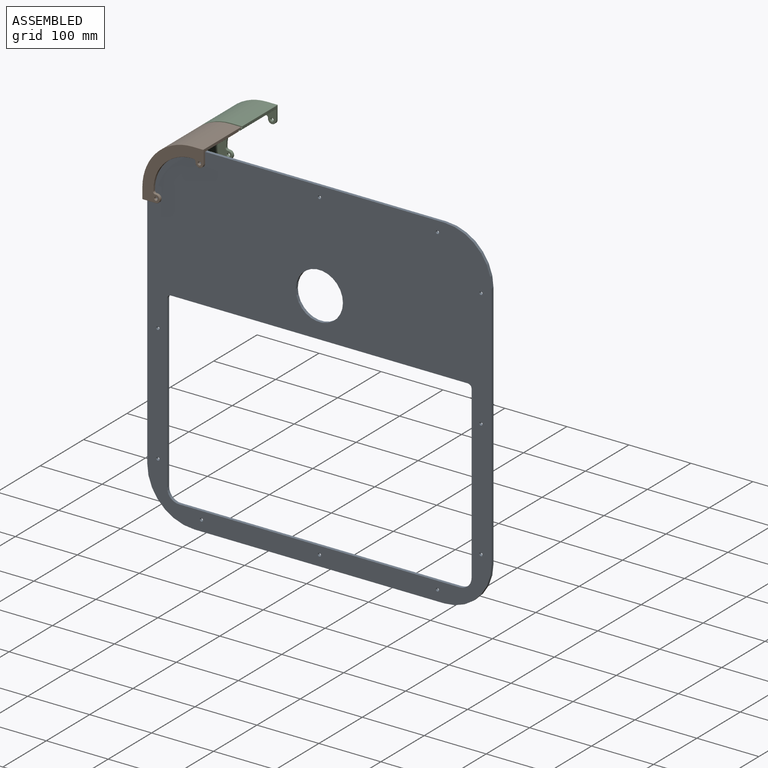
[diagram: assembled view]
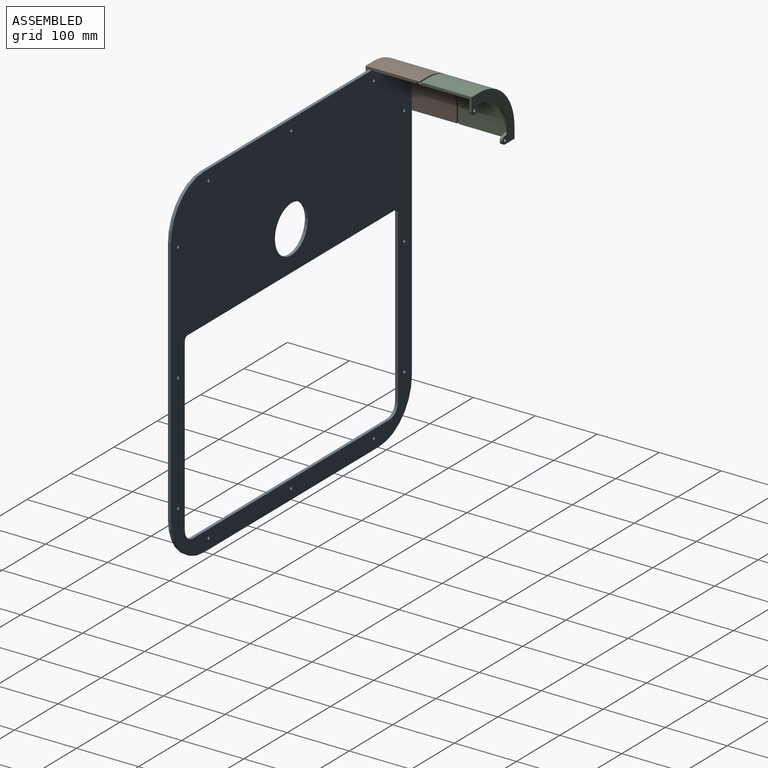
[diagram: assembled view, second angle]
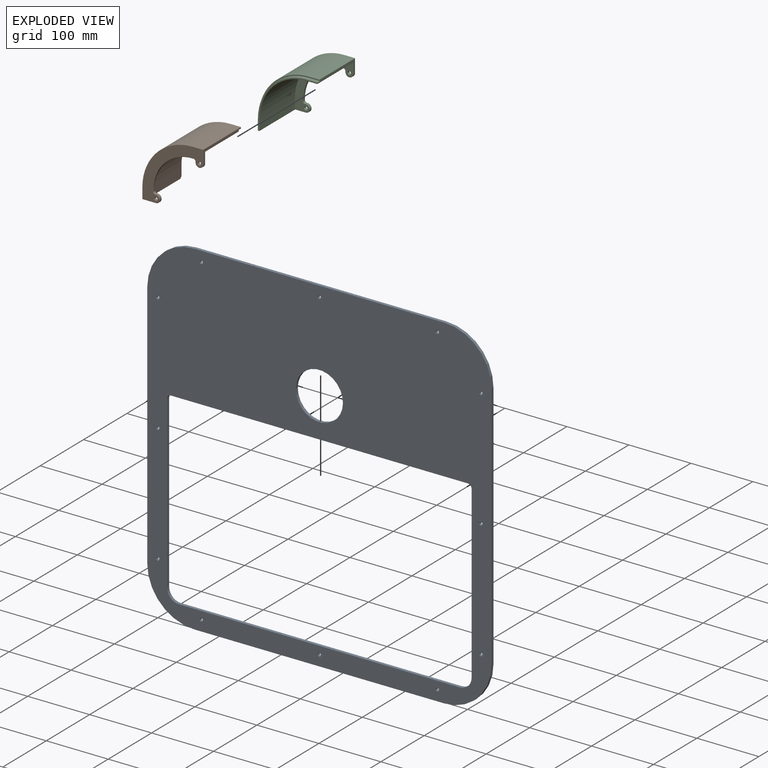
[diagram: exploded view]
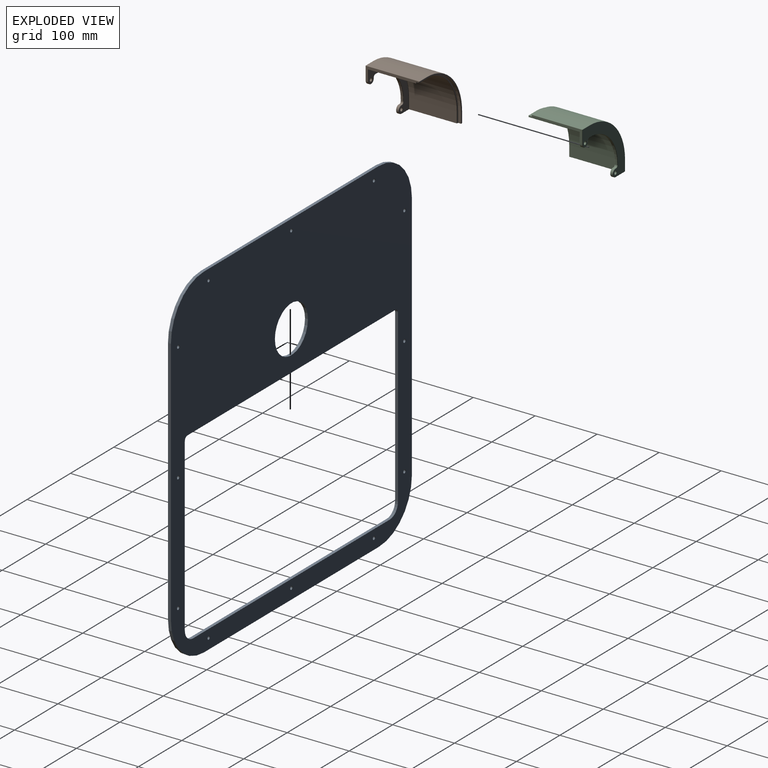
[diagram: exploded view, second angle]
ASSEMBLY  parts=3 mates=2
PART A: 43 faces, bbox 555.5x4.8x555.5 mm
  f0: plane 403.1x4.75mm, normal (0,0,1), area 1914.6mm2, adj f1,f16,f17,f18
  f1: cylinder r=76.2mm len=76.2mm, axis (0,1,0), area 568.5mm2, adj f0,f2,f17,f18
  f2: plane 403.1x4.75mm, normal (-1,0,0), area 1914.6mm2, adj f1,f3,f17,f18
  f3: cylinder r=76.2mm len=76.2mm, axis (0,1,0), area 568.5mm2, adj f2,f4,f17,f18
  f4: plane 403.1x4.75mm, normal (0,0,-1), area 1914.6mm2, adj f3,f5,f17,f18
  f5: cylinder r=76.2mm len=76.2mm, axis (0,1,0), area 568.5mm2, adj f4,f6,f17,f18
  f6: plane 403.1x4.75mm, normal (1,0,0), area 1914.6mm2, adj f5,f16,f17,f18
  f7: plane 453.39x4.75mm, normal (0,0,1), area 2153.5mm2, adj f8,f14,f17,f18
  f8: cylinder r=19.05mm len=19.05mm, axis (0,1,0), area 142.1mm2, adj f7,f9,f17,f18
  f9: plane 275.59x4.75mm, normal (1,0,0), area 1309mm2, adj f8,f10,f17,f18
  f10: cylinder r=6.35mm len=6.35mm, axis (0,1,0), area 47.4mm2, adj f9,f11,f17,f18
  f11: plane 478.79x4.75mm, normal (0,0,-1), area 2274.2mm2, adj f10,f12,f17,f18
  f12: cylinder r=6.35mm len=6.35mm, axis (0,1,0), area 47.4mm2, adj f11,f13,f17,f18
  f13: plane 275.59x4.75mm, normal (-1,0,0), area 1309mm2, adj f12,f14,f17,f18
  f14: cylinder r=19.05mm len=19.05mm, axis (0,1,0), area 142.1mm2, adj f7,f13,f17,f18
  f15: cylinder r=38.1mm len=76.2mm, axis (0,1,0), area 1137.1mm2, adj f17,f18
  f16: cylinder r=76.2mm len=76.2mm, axis (0,1,0), area 568.5mm2, adj f0,f6,f17,f18
  f17: plane 555.5x555.5mm, normal (0,-1,0), area 151027.2mm2, adj f0,f1,f2,f3,f4,f5,f6,f7
  f18: plane 555.5x555.5mm, normal (0,1,0), area 150978.6mm2, adj f0,f1,f2,f3,f4,f5,f6,f7
  f19: cylinder r=2.55mm len=5.11mm, axis (0,1,0), area 72.3mm2, adj f17,f20
  f20: cone r=2.55mm half-angle=45deg, axis (0,1,0), area 5.7mm2, adj f18,f19
  f21: cylinder r=2.55mm len=5.11mm, axis (0,1,0), area 72.3mm2, adj f17,f22
  f22: cone r=2.55mm half-angle=45deg, axis (0,1,0), area 5.7mm2, adj f18,f21
  f23: cylinder r=2.55mm len=5.11mm, axis (0,1,0), area 72.3mm2, adj f17,f24
  f24: cone r=2.55mm half-angle=45deg, axis (0,1,0), area 5.7mm2, adj f18,f23
  f25: cylinder r=2.55mm len=5.11mm, axis (0,1,0), area 72.3mm2, adj f17,f26
  f26: cone r=2.55mm half-angle=45deg, axis (0,1,0), area 5.7mm2, adj f18,f25
  f27: cylinder r=2.55mm len=5.11mm, axis (0,1,0), area 72.3mm2, adj f17,f28
  f28: cone r=2.55mm half-angle=45deg, axis (0,1,0), area 5.7mm2, adj f18,f27
  f29: cylinder r=2.55mm len=5.11mm, axis (0,1,0), area 72.3mm2, adj f17,f30
  f30: cone r=2.55mm half-angle=45deg, axis (0,1,0), area 5.7mm2, adj f18,f29
  f31: cylinder r=2.55mm len=5.11mm, axis (0,1,0), area 72.3mm2, adj f17,f32
  f32: cone r=2.55mm half-angle=45deg, axis (0,1,0), area 5.7mm2, adj f18,f31
  f33: cylinder r=2.55mm len=5.11mm, axis (0,1,0), area 72.3mm2, adj f17,f34
  f34: cone r=2.55mm half-angle=45deg, axis (0,1,0), area 5.7mm2, adj f18,f33
  f35: cylinder r=2.55mm len=5.11mm, axis (0,1,0), area 72.3mm2, adj f17,f36
  f36: cone r=2.55mm half-angle=45deg, axis (0,1,0), area 5.7mm2, adj f18,f35
  f37: cylinder r=2.55mm len=5.11mm, axis (0,1,0), area 72.3mm2, adj f17,f38
  f38: cone r=2.55mm half-angle=45deg, axis (0,1,0), area 5.7mm2, adj f18,f37
  f39: cylinder r=2.55mm len=5.11mm, axis (0,1,0), area 72.3mm2, adj f17,f40
  f40: cone r=2.55mm half-angle=45deg, axis (0,1,0), area 5.7mm2, adj f18,f39
  f41: cylinder r=2.55mm len=5.11mm, axis (0,1,0), area 72.3mm2, adj f17,f42
  f42: cone r=2.55mm half-angle=45deg, axis (0,1,0), area 5.7mm2, adj f18,f41
PART B: 86 faces, bbox 105.6x105.6x87.1 mm
  f0: plane 86.36x21.46mm, normal (0,-1,0), area 405mm2, adj f1,f38,f41,f47,f53,f61,f67,f71
  f1: cylinder r=6.35mm len=12.7mm, axis (0,0,-1), area 76mm2, adj f0,f2,f35,f70
  f2: plane 3.81x1mm, normal (0,1,0), area 3.8mm2, adj f1,f3,f32,f68
  f3: cylinder r=3.3mm len=3.81mm, axis (0,0,-1), area 19.5mm2, adj f2,f4,f30,f65
  f4: cylinder r=63.5mm len=64.97mm, axis (0,0,-1), area 391.3mm2, adj f3,f5,f28,f62
  f5: cylinder r=3.3mm len=3.81mm, axis (0,0,-1), area 19.5mm2, adj f4,f6,f26,f58
  f6: plane 3.81x1mm, normal (-1,0,0), area 3.8mm2, adj f5,f7,f24,f54
  f7: cylinder r=6.35mm len=12.7mm, axis (0,0,-1), area 76mm2, adj f6,f8,f25,f48
  f8: plane 86.36x21.46mm, normal (1,0,0), area 405mm2, adj f7,f27,f29,f33,f36,f42,f49,f50
  f9: cylinder r=2.55mm len=5.11mm, axis (0,0,-1), area 61.1mm2, adj f73,f75
  f10: cylinder r=2.55mm len=5.11mm, axis (0,0,-1), area 61.1mm2, adj f72,f74
  f11: plane 92.96x92.96mm, normal (0,0,1), area 1911.6mm2, adj f24,f25,f26,f27,f28,f30,f32,f35
  f12: plane 97.66x97.66mm, normal (0,0,-1), area 2649.5mm2, adj f48,f49,f54,f58,f59,f62,f63,f65
  f13: plane 76.84x17.02mm, normal (1,0,0), area 1307.6mm2, adj f15,f40,f41,f82
  f14: plane 76.84x17.02mm, normal (0,-1,0), area 1307.6mm2, adj f15,f29,f34,f84
  f15: cylinder r=76.2mm len=76.84mm, axis (0,0,-1), area 9196.7mm2, adj f13,f14,f37,f83
  f16: plane 95.38x95.38mm, normal (0,0,1), area 276.9mm2, adj f33,f34,f37,f40,f47,f77,f78,f79
  f17: plane 17.02x4.45mm, normal (0,-1,0), area 75.6mm2, adj f19,f36,f43,f77
  f18: plane 17.02x4.45mm, normal (1,0,0), area 75.6mm2, adj f19,f52,f53,f79
  f19: cylinder r=78.61mm len=78.61mm, axis (0,0,-1), area 548.9mm2, adj f17,f18,f46,f78
  f20: plane 86.36x17.02mm, normal (0,1,0), area 1469.7mm2, adj f21,f50,f51,f59
  f21: cylinder r=81.03mm len=86.36mm, axis (0,0,-1), area 10991.5mm2, adj f20,f22,f56,f63
  f22: plane 86.36x17.02mm, normal (-1,0,0), area 1469.7mm2, adj f21,f60,f66,f67
  f23: plane 97.66x97.66mm, normal (0,0,1), area 263.2mm2, adj f42,f43,f46,f51,f52,f56,f60,f61
  f24: cylinder r=0.38mm len=1mm, axis (0,1,0), area 0.6mm2, adj f6,f11,f25,f26
  f25: torus R=5.97mm, axis (0,0,1), area 11.7mm2, adj f7,f11,f24,f27
  f26: torus R=3.68mm, axis (0,0,1), area 3.2mm2, adj f5,f11,f24,f28
  f27: cylinder r=0.38mm len=17.4mm, axis (0,-1,0), area 10.2mm2, adj f8,f11,f25,f85
  f28: torus R=63.88mm, axis (0,0,1), area 61.6mm2, adj f4,f11,f26,f30
  f29: cylinder r=0.38mm len=77.47mm, axis (0,0,1), area 46.1mm2, adj f8,f14,f31,f85
  f30: torus R=3.68mm, axis (0,0,1), area 3.2mm2, adj f3,f11,f28,f32
  f31: sphere r=0.38mm, area 0.2mm2, adj f29,f33,f34
  f32: cylinder r=0.38mm len=1mm, axis (1,0,0), area 0.6mm2, adj f2,f11,f30,f35
  f33: cylinder r=0.38mm len=2.41mm, axis (0,-1,0), area 1.2mm2, adj f8,f16,f31,f76
  f34: cylinder r=0.38mm len=17.02mm, axis (-1,0,0), area 10.2mm2, adj f14,f16,f31,f37
  f35: torus R=5.97mm, axis (0,0,1), area 11.7mm2, adj f1,f11,f32,f38
  f36: cylinder r=0.38mm len=5.08mm, axis (0,0,1), area 2.8mm2, adj f8,f17,f39,f76
  f37: torus R=76.58mm, axis (0,0,1), area 71.8mm2, adj f15,f16,f34,f40
  f38: cylinder r=0.38mm len=17.4mm, axis (-1,0,0), area 10.2mm2, adj f0,f11,f35,f81
  f39: sphere r=0.38mm, area 0.2mm2, adj f36,f42,f43
  f40: cylinder r=0.38mm len=17.02mm, axis (0,-1,0), area 10.2mm2, adj f13,f16,f37,f44
  f41: cylinder r=0.38mm len=77.47mm, axis (0,0,1), area 46.1mm2, adj f0,f13,f44,f81
  f42: cylinder r=0.38mm len=1.65mm, axis (0,-1,0), area 1mm2, adj f8,f23,f39,f45
  f43: cylinder r=0.38mm len=17.02mm, axis (-1,0,0), area 10.2mm2, adj f17,f23,f39,f46
  f44: sphere r=0.38mm, area 0.2mm2, adj f40,f41,f47
  f45: sphere r=0.38mm, area 0.2mm2, adj f42,f50,f51
  f46: torus R=78.99mm, axis (0,0,1), area 74mm2, adj f19,f23,f43,f52
  f47: cylinder r=0.38mm len=2.41mm, axis (-1,0,0), area 1.2mm2, adj f0,f16,f44,f80
  f48: torus R=5.97mm, axis (0,0,1), area 11.7mm2, adj f7,f12,f49,f54
  f49: cylinder r=0.38mm len=21.46mm, axis (0,1,0), area 12.8mm2, adj f8,f12,f48,f55
  f50: cylinder r=0.38mm len=86.36mm, axis (0,0,-1), area 51.7mm2, adj f8,f20,f45,f55
  f51: cylinder r=0.38mm len=17.02mm, axis (1,0,0), area 10.2mm2, adj f20,f23,f45,f56
  f52: cylinder r=0.38mm len=17.02mm, axis (0,-1,0), area 10.2mm2, adj f18,f23,f46,f57
  f53: cylinder r=0.38mm len=5.08mm, axis (0,0,1), area 2.8mm2, adj f0,f18,f57,f80
  f54: cylinder r=0.38mm len=1mm, axis (0,-1,0), area 0.6mm2, adj f6,f12,f48,f58
  f55: sphere r=0.38mm, area 0.2mm2, adj f49,f50,f59
  f56: torus R=80.64mm, axis (0,0,1), area 76mm2, adj f21,f23,f51,f60
  f57: sphere r=0.38mm, area 0.2mm2, adj f52,f53,f61
  f58: torus R=3.68mm, axis (0,0,1), area 3.2mm2, adj f5,f12,f54,f62
  f59: cylinder r=0.38mm len=17.02mm, axis (-1,0,0), area 10.2mm2, adj f12,f20,f55,f63
  f60: cylinder r=0.38mm len=17.02mm, axis (0,1,0), area 10.2mm2, adj f22,f23,f56,f64
  f61: cylinder r=0.38mm len=1.65mm, axis (-1,0,0), area 1mm2, adj f0,f23,f57,f64
  f62: torus R=63.88mm, axis (0,0,1), area 61.6mm2, adj f4,f12,f58,f65
  f63: torus R=80.64mm, axis (0,0,1), area 76mm2, adj f12,f21,f59,f66
  f64: sphere r=0.38mm, area 0.2mm2, adj f60,f61,f67
  f65: torus R=3.68mm, axis (0,0,1), area 3.2mm2, adj f3,f12,f62,f68
  f66: cylinder r=0.38mm len=17.02mm, axis (0,-1,0), area 10.2mm2, adj f12,f22,f63,f69
  f67: cylinder r=0.38mm len=86.36mm, axis (0,0,-1), area 51.7mm2, adj f0,f22,f64,f69
  f68: cylinder r=0.38mm len=1mm, axis (-1,0,0), area 0.6mm2, adj f2,f12,f65,f70
  f69: sphere r=0.38mm, area 0.2mm2, adj f66,f67,f71
  f70: torus R=5.97mm, axis (0,0,1), area 11.7mm2, adj f1,f12,f68,f71
  f71: cylinder r=0.38mm len=21.46mm, axis (1,0,0), area 12.8mm2, adj f0,f12,f69,f70
  f72: torus R=2.93mm, axis (0,0,1), area 10.1mm2, adj f10,f12
  f73: torus R=2.93mm, axis (0,0,1), area 10.1mm2, adj f9,f12
  f74: torus R=2.93mm, axis (0,0,1), area 10.1mm2, adj f10,f11
  f75: torus R=2.93mm, axis (0,0,1), area 10.1mm2, adj f9,f11
  f76: bspline ~0.64x0.64mm, area 0.2mm2, adj f33,f36,f77
  f77: cylinder r=0.25mm len=17.02mm, axis (1,0,0), area 6.8mm2, adj f16,f17,f76,f78
  f78: torus R=78.36mm, axis (0,0,1), area 49.2mm2, adj f16,f19,f77,f79
  f79: cylinder r=0.25mm len=17.02mm, axis (0,1,0), area 6.8mm2, adj f16,f18,f78,f80
  f80: bspline ~0.64x0.64mm, area 0.2mm2, adj f47,f53,f79
  f81: bspline ~0.64x0.64mm, area 0.2mm2, adj f38,f41,f82
  f82: cylinder r=0.25mm len=17.02mm, axis (0,1,0), area 6.8mm2, adj f11,f13,f81,f83
  f83: torus R=75.95mm, axis (0,0,1), area 47.7mm2, adj f11,f15,f82,f84
  f84: cylinder r=0.25mm len=17.02mm, axis (1,0,0), area 6.8mm2, adj f11,f14,f83,f85
  f85: bspline ~0.64x0.64mm, area 0.2mm2, adj f27,f29,f84
PART C: 86 faces, bbox 105.6x105.6x87.1 mm
  f0: plane 86.36x21.46mm, normal (0,-1,0), area 405.1mm2, adj f1,f38,f41,f47,f53,f57,f61,f67
  f1: cylinder r=6.35mm len=12.7mm, axis (0,0,-1), area 76mm2, adj f0,f2,f35,f70
  f2: plane 3.81x1mm, normal (0,1,0), area 3.8mm2, adj f1,f3,f32,f68
  f3: cylinder r=3.3mm len=3.81mm, axis (0,0,-1), area 19.5mm2, adj f2,f4,f30,f65
  f4: cylinder r=63.5mm len=64.97mm, axis (0,0,-1), area 391.3mm2, adj f3,f5,f28,f62
  f5: cylinder r=3.3mm len=3.81mm, axis (0,0,-1), area 19.5mm2, adj f4,f6,f26,f58
  f6: plane 3.81x1mm, normal (-1,0,0), area 3.8mm2, adj f5,f7,f24,f54
  f7: cylinder r=6.35mm len=12.7mm, axis (0,0,-1), area 76mm2, adj f6,f8,f25,f48
  f8: plane 86.36x21.46mm, normal (1,0,0), area 405.1mm2, adj f7,f27,f29,f33,f36,f39,f42,f49
  f9: cylinder r=2.55mm len=5.11mm, axis (0,0,-1), area 61.1mm2, adj f73,f75
  f10: cylinder r=2.55mm len=5.11mm, axis (0,0,-1), area 61.1mm2, adj f72,f74
  f11: plane 92.96x92.96mm, normal (0,0,1), area 1911.6mm2, adj f24,f25,f26,f27,f28,f30,f32,f35
  f12: plane 97.66x97.66mm, normal (0,0,-1), area 2649.5mm2, adj f48,f49,f54,f58,f59,f62,f63,f65
  f13: plane 81.92x17.02mm, normal (1,0,0), area 1394mm2, adj f15,f40,f41,f82
  f14: plane 81.92x17.02mm, normal (0,-1,0), area 1394mm2, adj f15,f29,f34,f84
  f15: cylinder r=76.2mm len=81.92mm, axis (0,0,-1), area 9804.8mm2, adj f13,f14,f37,f83
  f16: plane 17.02x4.45mm, normal (0,1,0), area 75.6mm2, adj f17,f36,f43,f77
  f17: cylinder r=78.61mm len=78.61mm, axis (0,0,-1), area 548.9mm2, adj f16,f18,f46,f78
  f18: plane 17.02x4.45mm, normal (-1,0,0), area 75.6mm2, adj f17,f52,f53,f79
  f19: plane 95.38x95.38mm, normal (0,0,1), area 276.9mm2, adj f33,f34,f37,f40,f47,f77,f78,f79
  f20: plane 81.28x17.02mm, normal (0,1,0), area 1383.2mm2, adj f21,f50,f51,f59
  f21: cylinder r=81.03mm len=81.28mm, axis (0,0,-1), area 10344.9mm2, adj f20,f22,f56,f63
  f22: plane 81.28x17.02mm, normal (-1,0,0), area 1383.2mm2, adj f21,f60,f66,f67
  f23: plane 97.66x97.66mm, normal (0,0,1), area 263.2mm2, adj f42,f43,f46,f51,f52,f56,f60,f61
  f24: cylinder r=0.38mm len=1mm, axis (0,1,0), area 0.6mm2, adj f6,f11,f25,f26
  f25: torus R=5.97mm, axis (0,0,1), area 11.7mm2, adj f7,f11,f24,f27
  f26: torus R=3.68mm, axis (0,0,1), area 3.2mm2, adj f5,f11,f24,f28
  f27: cylinder r=0.38mm len=17.4mm, axis (0,-1,0), area 10.2mm2, adj f8,f11,f25,f85
  f28: torus R=63.88mm, axis (0,0,1), area 61.6mm2, adj f4,f11,f26,f30
  f29: cylinder r=0.38mm len=82.55mm, axis (0,0,1), area 49.2mm2, adj f8,f14,f31,f85
  f30: torus R=3.68mm, axis (0,0,1), area 3.2mm2, adj f3,f11,f28,f32
  f31: sphere r=0.38mm, area 0.2mm2, adj f29,f33,f34
  f32: cylinder r=0.38mm len=1mm, axis (1,0,0), area 0.6mm2, adj f2,f11,f30,f35
  f33: cylinder r=0.38mm len=1.78mm, axis (0,-1,0), area 1mm2, adj f8,f19,f31,f76
  f34: cylinder r=0.38mm len=17.02mm, axis (-1,0,0), area 10.2mm2, adj f14,f19,f31,f37
  f35: torus R=5.97mm, axis (0,0,1), area 11.7mm2, adj f1,f11,f32,f38
  f36: cylinder r=0.38mm len=4.45mm, axis (0,0,-1), area 2.6mm2, adj f8,f16,f39,f76
  f37: torus R=76.58mm, axis (0,0,1), area 71.8mm2, adj f15,f19,f34,f40
  f38: cylinder r=0.38mm len=17.4mm, axis (-1,0,0), area 10.2mm2, adj f0,f11,f35,f81
  f39: torus R=0.76mm, axis (1,0,0), area 0.5mm2, adj f8,f36,f42,f43
  f40: cylinder r=0.38mm len=17.02mm, axis (0,-1,0), area 10.2mm2, adj f13,f19,f37,f44
  f41: cylinder r=0.38mm len=82.55mm, axis (0,0,1), area 49.2mm2, adj f0,f13,f44,f81
  f42: cylinder r=0.38mm len=1.65mm, axis (0,-1,0), area 1mm2, adj f8,f23,f39,f45
  f43: cylinder r=0.38mm len=17.02mm, axis (-1,0,0), area 10.2mm2, adj f16,f23,f39,f46
  f44: sphere r=0.38mm, area 0.2mm2, adj f40,f41,f47
  f45: sphere r=0.38mm, area 0.2mm2, adj f42,f50,f51
  f46: torus R=78.99mm, axis (0,0,1), area 74mm2, adj f17,f23,f43,f52
  f47: cylinder r=0.38mm len=1.78mm, axis (-1,0,0), area 1mm2, adj f0,f19,f44,f80
  f48: torus R=5.97mm, axis (0,0,1), area 11.7mm2, adj f7,f12,f49,f54
  f49: cylinder r=0.38mm len=21.46mm, axis (0,1,0), area 12.8mm2, adj f8,f12,f48,f55
  f50: cylinder r=0.38mm len=81.28mm, axis (0,0,-1), area 48.6mm2, adj f8,f20,f45,f55
  f51: cylinder r=0.38mm len=17.02mm, axis (1,0,0), area 10.2mm2, adj f20,f23,f45,f56
  f52: cylinder r=0.38mm len=17.02mm, axis (0,-1,0), area 10.2mm2, adj f18,f23,f46,f57
  f53: cylinder r=0.38mm len=4.45mm, axis (0,0,-1), area 2.6mm2, adj f0,f18,f57,f80
  f54: cylinder r=0.38mm len=1mm, axis (0,-1,0), area 0.6mm2, adj f6,f12,f48,f58
  f55: sphere r=0.38mm, area 0.2mm2, adj f49,f50,f59
  f56: torus R=80.64mm, axis (0,0,1), area 76mm2, adj f21,f23,f51,f60
  f57: torus R=0.76mm, axis (0,1,0), area 0.5mm2, adj f0,f52,f53,f61
  f58: torus R=3.68mm, axis (0,0,1), area 3.2mm2, adj f5,f12,f54,f62
  f59: cylinder r=0.38mm len=17.02mm, axis (-1,0,0), area 10.2mm2, adj f12,f20,f55,f63
  f60: cylinder r=0.38mm len=17.02mm, axis (0,1,0), area 10.2mm2, adj f22,f23,f56,f64
  f61: cylinder r=0.38mm len=1.65mm, axis (-1,0,0), area 1mm2, adj f0,f23,f57,f64
  f62: torus R=63.88mm, axis (0,0,1), area 61.6mm2, adj f4,f12,f58,f65
  f63: torus R=80.64mm, axis (0,0,1), area 76mm2, adj f12,f21,f59,f66
  f64: sphere r=0.38mm, area 0.2mm2, adj f60,f61,f67
  f65: torus R=3.68mm, axis (0,0,1), area 3.2mm2, adj f3,f12,f62,f68
  f66: cylinder r=0.38mm len=17.02mm, axis (0,-1,0), area 10.2mm2, adj f12,f22,f63,f69
  f67: cylinder r=0.38mm len=81.28mm, axis (0,0,-1), area 48.6mm2, adj f0,f22,f64,f69
  f68: cylinder r=0.38mm len=1mm, axis (-1,0,0), area 0.6mm2, adj f2,f12,f65,f70
  f69: sphere r=0.38mm, area 0.2mm2, adj f66,f67,f71
  f70: torus R=5.97mm, axis (0,0,1), area 11.7mm2, adj f1,f12,f68,f71
  f71: cylinder r=0.38mm len=21.46mm, axis (1,0,0), area 12.8mm2, adj f0,f12,f69,f70
  f72: torus R=2.93mm, axis (0,0,1), area 10.1mm2, adj f10,f12
  f73: torus R=2.93mm, axis (0,0,1), area 10.1mm2, adj f9,f12
  f74: torus R=2.93mm, axis (0,0,1), area 10.1mm2, adj f10,f11
  f75: torus R=2.93mm, axis (0,0,1), area 10.1mm2, adj f9,f11
  f76: bspline ~0.46x0.38mm, area 0.2mm2, adj f33,f36,f77
  f77: cylinder r=0.25mm len=17.02mm, axis (1,0,0), area 6.8mm2, adj f16,f19,f76,f78
  f78: torus R=78.36mm, axis (0,0,1), area 49.2mm2, adj f17,f19,f77,f79
  f79: cylinder r=0.25mm len=17.02mm, axis (0,1,0), area 6.8mm2, adj f18,f19,f78,f80
  f80: bspline ~0.4x0.38mm, area 0.2mm2, adj f47,f53,f79
  f81: bspline ~0.64x0.64mm, area 0.2mm2, adj f38,f41,f82
  f82: cylinder r=0.25mm len=17.02mm, axis (0,1,0), area 6.8mm2, adj f11,f13,f81,f83
  f83: torus R=75.95mm, axis (0,0,1), area 47.7mm2, adj f11,f15,f82,f84
  f84: cylinder r=0.25mm len=17.02mm, axis (1,0,0), area 6.8mm2, adj f11,f14,f83,f85
  f85: bspline ~0.64x0.64mm, area 0.2mm2, adj f27,f29,f84
PLACE A t=(-200.37,80.94,-226.91)mm fixed
PLACE B rot(axis=(-0.58,0.58,0.58),120deg) t=(-124.17,71.62,252.38)mm
PLACE C rot(axis=(1,0,0),90deg) t=(-124.17,243.32,252.38)mm
MATE revolute B.f7 <-> A.f37  axis (0,1,0) through (-183.36,76.19,241.33)mm
MATE slider C.f4 <-> B.f4  axis (0,1,0) through (-124.17,158.67,252.38)mm
